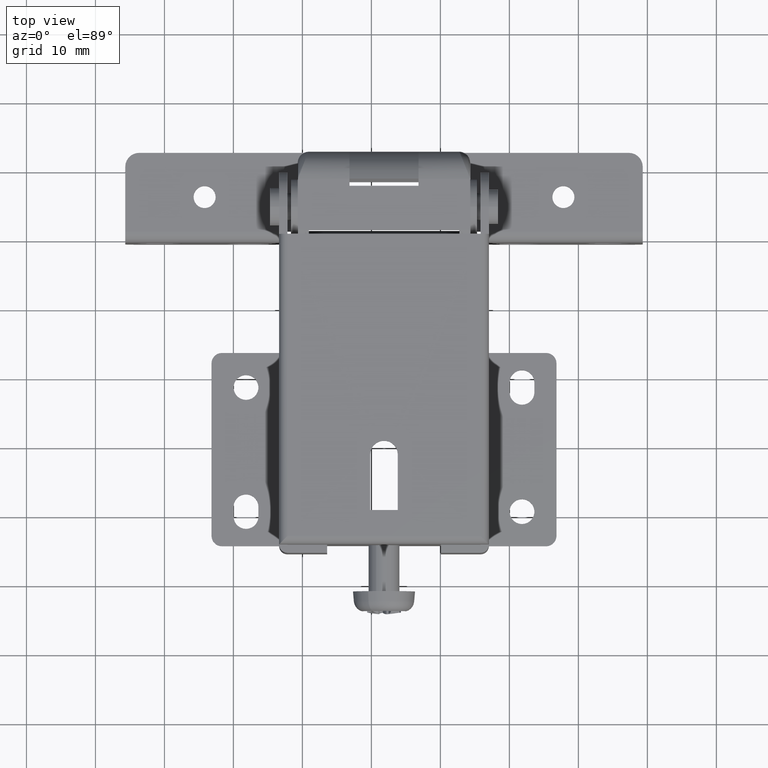
[diagram: clean part render]
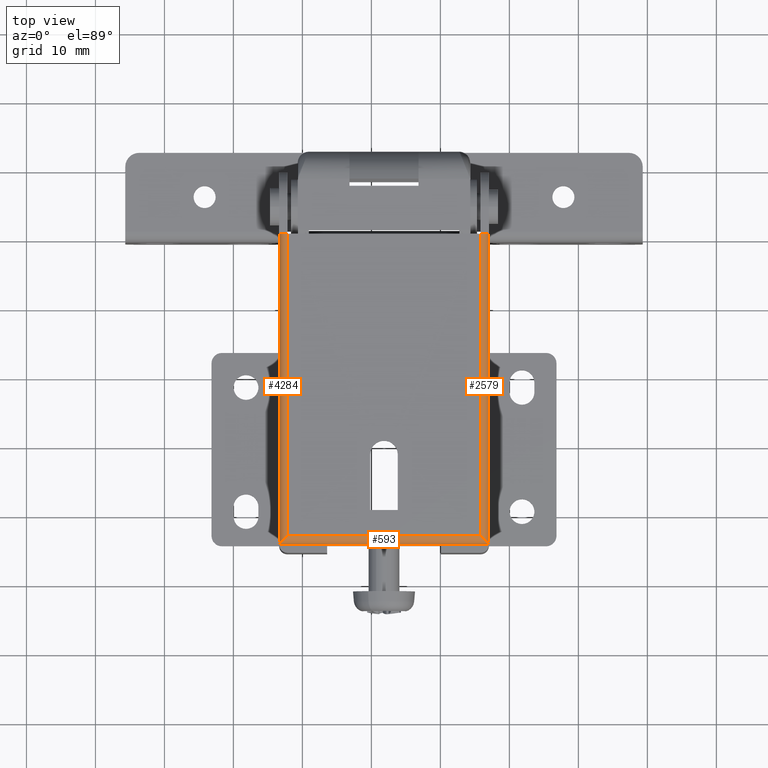
[diagram: same view with one multi-face feature highlighted, each face labeled with its STEP entity id]
A machine part, top view. The highlighted faces form ONE feature: a constant-radius fillet chain: 3 tangent blend faces with common blend radius 1.2 mm. The faces share edges in the B-rep.
Their STEP definitions:
[1] entity #4284 (Cylinder):
#337 = CARTESIAN_POINT ( 'NONE',  ( -13.99999699999975900, -5.000012000000070100, -4.000000000000000000 ) ) ;
#364 = EDGE_CURVE ( 'NONE', #5909, #9813, #3483, .T. ) ;
#581 = CARTESIAN_POINT ( 'NONE',  ( -15.19999699999974900, -5.000012000000070100, -49.00000000000000000 ) ) ;
#934 = ORIENTED_EDGE ( 'NONE', *, *, #9052, .F. ) ;
#1165 = DIRECTION ( 'NONE',  ( 1.000000000000000000, 0.0000000000000000000, 0.0000000000000000000 ) ) ;
#1284 = CARTESIAN_POINT ( 'NONE',  ( -13.99999699999975900, -6.200012000000070200, -47.80000000000000400 ) ) ;
#1330 = VECTOR ( 'NONE', #9780, 1000.000000000000000 ) ;
#2698 = CARTESIAN_POINT ( 'NONE',  ( -13.99999699999975900, -5.000012000000070100, -4.000000000000000000 ) ) ;
#2890 = CARTESIAN_POINT ( 'NONE',  ( -13.99999699999975900, -6.200012000000070200, -4.000000000000000000 ) ) ;
#3084 = CARTESIAN_POINT ( 'NONE',  ( -15.19999699999975800, -5.702955725152355300, -49.00000000000000000 ) ) ;
#3149 = ORIENTED_EDGE ( 'NONE', *, *, #364, .F. ) ;
#3184 = VECTOR ( 'NONE', #4765, 1000.000000000000000 ) ;
#3447 = LINE ( 'NONE', #6436, #3184 ) ;
#3483 =( BOUNDED_CURVE ( )  B_SPLINE_CURVE ( 3, ( #5633, #5595, #3084, #581 ),
 .UNSPECIFIED., .F., .T. ) 
 B_SPLINE_CURVE_WITH_KNOTS ( ( 4, 4 ),
 ( 1.570796326794896600, 3.141592653589793100 ),
 .UNSPECIFIED. ) 
 CURVE ( )  GEOMETRIC_REPRESENTATION_ITEM ( )  RATIONAL_B_SPLINE_CURVE ( ( 1.000000000000000000, 0.8047378541243649400, 0.8047378541243649400, 1.000000000000000000 ) ) 
 REPRESENTATION_ITEM ( '' )  );
#3498 = CYLINDRICAL_SURFACE ( 'NONE', #5146, 1.199999999999999700 ) ;
#3518 = DIRECTION ( 'NONE',  ( -1.000000000000000000, 0.0000000000000000000, 0.0000000000000000000 ) ) ;
#3920 = EDGE_CURVE ( 'NONE', #8909, #8520, #4176, .T. ) ;
#4176 = CIRCLE ( 'NONE', #7510, 1.199999999999999700 ) ;
#4284 = ADVANCED_FACE ( 'NONE', ( #10324 ), #3498, .T. ) ;
#4765 = DIRECTION ( 'NONE',  ( -0.0000000000000000000, -0.0000000000000000000, 1.000000000000000000 ) ) ;
#5146 = AXIS2_PLACEMENT_3D ( 'NONE', #2698, #6074, #3518 ) ;
#5595 = CARTESIAN_POINT ( 'NONE',  ( -14.70294072515204500, -6.200012000000071100, -48.50294372515229200 ) ) ;
#5633 = CARTESIAN_POINT ( 'NONE',  ( -13.99999699999975900, -6.200012000000070200, -47.80000000000000400 ) ) ;
#5702 = CARTESIAN_POINT ( 'NONE',  ( -13.99999699999975900, -6.200012000000070200, -47.80000000000000400 ) ) ;
#5909 = VERTEX_POINT ( 'NONE', #5702 ) ;
#6074 = DIRECTION ( 'NONE',  ( 0.0000000000000000000, 0.0000000000000000000, -1.000000000000000000 ) ) ;
#6229 = DIRECTION ( 'NONE',  ( 0.0000000000000000000, 0.0000000000000000000, 1.000000000000000000 ) ) ;
#6405 = ORIENTED_EDGE ( 'NONE', *, *, #9394, .F. ) ;
#6436 = CARTESIAN_POINT ( 'NONE',  ( -15.19999699999980100, -5.000012000000070100, -4.000000000000000000 ) ) ;
#7151 = ORIENTED_EDGE ( 'NONE', *, *, #3920, .F. ) ;
#7510 = AXIS2_PLACEMENT_3D ( 'NONE', #337, #6229, #1165 ) ;
#7623 = CARTESIAN_POINT ( 'NONE',  ( -15.19999699999980100, -5.000012000000070100, -4.000000000000000000 ) ) ;
#7940 = EDGE_LOOP ( 'NONE', ( #7151, #6405, #3149, #934 ) ) ;
#8119 = LINE ( 'NONE', #1284, #1330 ) ;
#8520 = VERTEX_POINT ( 'NONE', #2890 ) ;
#8909 = VERTEX_POINT ( 'NONE', #7623 ) ;
#9052 = EDGE_CURVE ( 'NONE', #8520, #5909, #8119, .T. ) ;
#9394 = EDGE_CURVE ( 'NONE', #9813, #8909, #3447, .T. ) ;
#9780 = DIRECTION ( 'NONE',  ( -0.0000000000000000000, -0.0000000000000000000, -1.000000000000000000 ) ) ;
#9813 = VERTEX_POINT ( 'NONE', #10367 ) ;
#10324 = FACE_OUTER_BOUND ( 'NONE', #7940, .T. ) ;
#10367 = CARTESIAN_POINT ( 'NONE',  ( -15.19999699999974900, -5.000012000000070100, -49.00000000000000000 ) ) ;
[2] entity #593 (Cylinder):
#230 = CARTESIAN_POINT ( 'NONE',  ( 13.99999700000019900, -6.200012000000070200, -47.80000000000000400 ) ) ;
#241 = ORIENTED_EDGE ( 'NONE', *, *, #5521, .T. ) ;
#364 = EDGE_CURVE ( 'NONE', #5909, #9813, #3483, .T. ) ;
#365 = ORIENTED_EDGE ( 'NONE', *, *, #8698, .F. ) ;
#581 = CARTESIAN_POINT ( 'NONE',  ( -15.19999699999974900, -5.000012000000070100, -49.00000000000000000 ) ) ;
#593 = ADVANCED_FACE ( 'NONE', ( #2937 ), #7197, .T. ) ;
#643 = ORIENTED_EDGE ( 'NONE', *, *, #5946, .T. ) ;
#651 = CARTESIAN_POINT ( 'NONE',  ( 0.0000000000000000000, -5.000012000000070100, -49.00000000000000000 ) ) ;
#1003 = DIRECTION ( 'NONE',  ( 1.000000000000000000, 0.0000000000000000000, 0.0000000000000000000 ) ) ;
#1525 = DIRECTION ( 'NONE',  ( 1.000000000000000000, -0.0000000000000000000, -0.0000000000000000000 ) ) ;
#1722 = VERTEX_POINT ( 'NONE', #9180 ) ;
#1816 = VERTEX_POINT ( 'NONE', #2580 ) ;
#1926 = ORIENTED_EDGE ( 'NONE', *, *, #6883, .F. ) ;
#1998 = LINE ( 'NONE', #7472, #3984 ) ;
#2084 = ORIENTED_EDGE ( 'NONE', *, *, #5229, .T. ) ;
#2290 = VECTOR ( 'NONE', #4810, 1000.000000000000000 ) ;
#2369 = VERTEX_POINT ( 'NONE', #10919 ) ;
#2370 = DIRECTION ( 'NONE',  ( -1.000000000000000000, 0.0000000000000000000, 0.0000000000000000000 ) ) ;
#2580 = CARTESIAN_POINT ( 'NONE',  ( 14.00000000000019900, -5.000012000000110000, -49.00000000000000000 ) ) ;
#2588 = LINE ( 'NONE', #6625, #6846 ) ;
#2937 = FACE_OUTER_BOUND ( 'NONE', #10485, .T. ) ;
#3084 = CARTESIAN_POINT ( 'NONE',  ( -15.19999699999975800, -5.702955725152355300, -49.00000000000000000 ) ) ;
#3219 = DIRECTION ( 'NONE',  ( 1.000000000000000000, 0.0000000000000000000, 0.0000000000000000000 ) ) ;
#3483 =( BOUNDED_CURVE ( )  B_SPLINE_CURVE ( 3, ( #5633, #5595, #3084, #581 ),
 .UNSPECIFIED., .F., .T. ) 
 B_SPLINE_CURVE_WITH_KNOTS ( ( 4, 4 ),
 ( 1.570796326794896600, 3.141592653589793100 ),
 .UNSPECIFIED. ) 
 CURVE ( )  GEOMETRIC_REPRESENTATION_ITEM ( )  RATIONAL_B_SPLINE_CURVE ( ( 1.000000000000000000, 0.8047378541243649400, 0.8047378541243649400, 1.000000000000000000 ) ) 
 REPRESENTATION_ITEM ( '' )  );
#3562 = CARTESIAN_POINT ( 'NONE',  ( 15.19999700000019900, -5.000012000000070100, -49.00000000000000000 ) ) ;
#3603 = DIRECTION ( 'NONE',  ( 1.000000000000000000, 0.0000000000000000000, 0.0000000000000000000 ) ) ;
#3884 = LINE ( 'NONE', #6078, #10727 ) ;
#3984 = VECTOR ( 'NONE', #2370, 1000.000000000000000 ) ;
#4109 = CARTESIAN_POINT ( 'NONE',  ( -984.8000030000000600, -5.000012000000070100, -47.80000000000000400 ) ) ;
#4437 = LINE ( 'NONE', #4456, #11022 ) ;
#4456 = CARTESIAN_POINT ( 'NONE',  ( -984.8000030000000600, -5.000012000000070100, -49.00000000000000000 ) ) ;
#4810 = DIRECTION ( 'NONE',  ( 1.000000000000000000, 0.0000000000000000000, 0.0000000000000000000 ) ) ;
#4958 = DIRECTION ( 'NONE',  ( 0.0000000000000000000, 0.0000000000000000000, -1.000000000000000000 ) ) ;
#5229 = EDGE_CURVE ( 'NONE', #2369, #7363, #2588, .T. ) ;
#5266 = CARTESIAN_POINT ( 'NONE',  ( 14.70294072515248600, -6.200012000000071100, -48.50294372515229200 ) ) ;
#5283 = CARTESIAN_POINT ( 'NONE',  ( 13.99000000000020100, -5.000012000000110000, -49.00000000000000000 ) ) ;
#5285 = CARTESIAN_POINT ( 'NONE',  ( 15.19999700000019900, -5.000012000000070100, -49.00000000000000000 ) ) ;
#5521 = EDGE_CURVE ( 'NONE', #10658, #1722, #7318, .T. ) ;
#5571 = EDGE_CURVE ( 'NONE', #9813, #9428, #4437, .T. ) ;
#5595 = CARTESIAN_POINT ( 'NONE',  ( -14.70294072515204500, -6.200012000000071100, -48.50294372515229200 ) ) ;
#5633 = CARTESIAN_POINT ( 'NONE',  ( -13.99999699999975900, -6.200012000000070200, -47.80000000000000400 ) ) ;
#5702 = CARTESIAN_POINT ( 'NONE',  ( -13.99999699999975900, -6.200012000000070200, -47.80000000000000400 ) ) ;
#5751 = VECTOR ( 'NONE', #1525, 1000.000000000000000 ) ;
#5909 = VERTEX_POINT ( 'NONE', #5702 ) ;
#5946 = EDGE_CURVE ( 'NONE', #7363, #1816, #8037, .T. ) ;
#6078 = CARTESIAN_POINT ( 'NONE',  ( -984.8000030000000600, -5.000012000000070100, -49.00000000000000000 ) ) ;
#6296 = ORIENTED_EDGE ( 'NONE', *, *, #5571, .T. ) ;
#6625 = CARTESIAN_POINT ( 'NONE',  ( -984.8000030000000600, -5.000012000000070100, -49.00000000000000000 ) ) ;
#6711 = EDGE_CURVE ( 'NONE', #1816, #10658, #3884, .T. ) ;
#6811 = LINE ( 'NONE', #10826, #2290 ) ;
#6846 = VECTOR ( 'NONE', #10993, 1000.000000000000000 ) ;
#6883 = EDGE_CURVE ( 'NONE', #5909, #1722, #6811, .T. ) ;
#7197 = CYLINDRICAL_SURFACE ( 'NONE', #7564, 1.199999999999999700 ) ;
#7318 =( BOUNDED_CURVE ( )  B_SPLINE_CURVE ( 3, ( #3562, #8694, #5266, #230 ),
 .UNSPECIFIED., .F., .F. ) 
 B_SPLINE_CURVE_WITH_KNOTS ( ( 4, 4 ),
 ( 0.0000000000000000000, 1.570796326794896600 ),
 .UNSPECIFIED. ) 
 CURVE ( )  GEOMETRIC_REPRESENTATION_ITEM ( )  RATIONAL_B_SPLINE_CURVE ( ( 1.000000000000000000, 0.8047378541243649400, 0.8047378541243649400, 1.000000000000000000 ) ) 
 REPRESENTATION_ITEM ( '' )  );
#7363 = VERTEX_POINT ( 'NONE', #5283 ) ;
#7472 = CARTESIAN_POINT ( 'NONE',  ( -13.98999999999979900, -5.000012000000110000, -49.00000000000000000 ) ) ;
#7564 = AXIS2_PLACEMENT_3D ( 'NONE', #4109, #3219, #4958 ) ;
#8037 = LINE ( 'NONE', #651, #5751 ) ;
#8243 = CARTESIAN_POINT ( 'NONE',  ( -13.99999999999979900, -5.000012000000110000, -49.00000000000000000 ) ) ;
#8694 = CARTESIAN_POINT ( 'NONE',  ( 15.19999700000020000, -5.702955725152355300, -49.00000000000000000 ) ) ;
#8698 = EDGE_CURVE ( 'NONE', #2369, #9428, #1998, .T. ) ;
#9180 = CARTESIAN_POINT ( 'NONE',  ( 13.99999700000019900, -6.200012000000070200, -47.80000000000000400 ) ) ;
#9275 = ORIENTED_EDGE ( 'NONE', *, *, #364, .T. ) ;
#9428 = VERTEX_POINT ( 'NONE', #8243 ) ;
#9813 = VERTEX_POINT ( 'NONE', #10367 ) ;
#10367 = CARTESIAN_POINT ( 'NONE',  ( -15.19999699999974900, -5.000012000000070100, -49.00000000000000000 ) ) ;
#10485 = EDGE_LOOP ( 'NONE', ( #1926, #9275, #6296, #365, #2084, #643, #10756, #241 ) ) ;
#10658 = VERTEX_POINT ( 'NONE', #5285 ) ;
#10727 = VECTOR ( 'NONE', #1003, 1000.000000000000000 ) ;
#10756 = ORIENTED_EDGE ( 'NONE', *, *, #6711, .T. ) ;
#10826 = CARTESIAN_POINT ( 'NONE',  ( -984.8000030000000600, -6.200012000000070200, -47.80000000000000400 ) ) ;
#10919 = CARTESIAN_POINT ( 'NONE',  ( -13.98999999999979900, -5.000012000000110000, -49.00000000000000000 ) ) ;
#10993 = DIRECTION ( 'NONE',  ( 1.000000000000000000, 0.0000000000000000000, 0.0000000000000000000 ) ) ;
#11022 = VECTOR ( 'NONE', #3603, 1000.000000000000000 ) ;
[3] entity #2579 (Cylinder):
#230 = CARTESIAN_POINT ( 'NONE',  ( 13.99999700000019900, -6.200012000000070200, -47.80000000000000400 ) ) ;
#624 = ORIENTED_EDGE ( 'NONE', *, *, #7236, .F. ) ;
#744 = AXIS2_PLACEMENT_3D ( 'NONE', #945, #2606, #6000 ) ;
#945 = CARTESIAN_POINT ( 'NONE',  ( 13.99999700000019900, -5.000012000000070100, 0.0000000000000000000 ) ) ;
#1106 = ORIENTED_EDGE ( 'NONE', *, *, #10151, .F. ) ;
#1565 = FACE_OUTER_BOUND ( 'NONE', #7768, .T. ) ;
#1722 = VERTEX_POINT ( 'NONE', #9180 ) ;
#2157 = LINE ( 'NONE', #6020, #4403 ) ;
#2579 = ADVANCED_FACE ( 'NONE', ( #1565 ), #5518, .T. ) ;
#2606 = DIRECTION ( 'NONE',  ( 0.0000000000000000000, 0.0000000000000000000, 1.000000000000000000 ) ) ;
#3562 = CARTESIAN_POINT ( 'NONE',  ( 15.19999700000019900, -5.000012000000070100, -49.00000000000000000 ) ) ;
#3600 = EDGE_CURVE ( 'NONE', #1722, #10781, #8611, .T. ) ;
#3932 = DIRECTION ( 'NONE',  ( 0.0000000000000000000, 0.0000000000000000000, 1.000000000000000000 ) ) ;
#4245 = CARTESIAN_POINT ( 'NONE',  ( 13.99999700000019900, -6.200012000000070200, -4.000000000000000000 ) ) ;
#4403 = VECTOR ( 'NONE', #6905, 1000.000000000000000 ) ;
#5095 = DIRECTION ( 'NONE',  ( 0.0000000000000000000, 0.0000000000000000000, 1.000000000000000000 ) ) ;
#5266 = CARTESIAN_POINT ( 'NONE',  ( 14.70294072515248600, -6.200012000000071100, -48.50294372515229200 ) ) ;
#5285 = CARTESIAN_POINT ( 'NONE',  ( 15.19999700000019900, -5.000012000000070100, -49.00000000000000000 ) ) ;
#5518 = CYLINDRICAL_SURFACE ( 'NONE', #744, 1.199999999999999700 ) ;
#5521 = EDGE_CURVE ( 'NONE', #10658, #1722, #7318, .T. ) ;
#6000 = DIRECTION ( 'NONE',  ( 1.000000000000000000, 0.0000000000000000000, 0.0000000000000000000 ) ) ;
#6020 = CARTESIAN_POINT ( 'NONE',  ( 15.19999700000019900, -5.000012000000070100, 0.0000000000000000000 ) ) ;
#6905 = DIRECTION ( 'NONE',  ( 0.0000000000000000000, 0.0000000000000000000, -1.000000000000000000 ) ) ;
#6980 = ORIENTED_EDGE ( 'NONE', *, *, #3600, .F. ) ;
#7236 = EDGE_CURVE ( 'NONE', #7310, #10658, #2157, .T. ) ;
#7310 = VERTEX_POINT ( 'NONE', #9523 ) ;
#7318 =( BOUNDED_CURVE ( )  B_SPLINE_CURVE ( 3, ( #3562, #8694, #5266, #230 ),
 .UNSPECIFIED., .F., .F. ) 
 B_SPLINE_CURVE_WITH_KNOTS ( ( 4, 4 ),
 ( 0.0000000000000000000, 1.570796326794896600 ),
 .UNSPECIFIED. ) 
 CURVE ( )  GEOMETRIC_REPRESENTATION_ITEM ( )  RATIONAL_B_SPLINE_CURVE ( ( 1.000000000000000000, 0.8047378541243649400, 0.8047378541243649400, 1.000000000000000000 ) ) 
 REPRESENTATION_ITEM ( '' )  );
#7768 = EDGE_LOOP ( 'NONE', ( #1106, #6980, #11007, #624 ) ) ;
#7787 = CARTESIAN_POINT ( 'NONE',  ( 13.99999700000019900, -6.200012000000070200, -4.000000000000000000 ) ) ;
#8336 = VECTOR ( 'NONE', #5095, 1000.000000000000000 ) ;
#8611 = LINE ( 'NONE', #4245, #8336 ) ;
#8694 = CARTESIAN_POINT ( 'NONE',  ( 15.19999700000020000, -5.702955725152355300, -49.00000000000000000 ) ) ;
#9068 = CARTESIAN_POINT ( 'NONE',  ( 13.99999700000019900, -5.000012000000070100, -4.000000000000000000 ) ) ;
#9180 = CARTESIAN_POINT ( 'NONE',  ( 13.99999700000019900, -6.200012000000070200, -47.80000000000000400 ) ) ;
#9523 = CARTESIAN_POINT ( 'NONE',  ( 15.19999700000019900, -5.000012000000070100, -4.000000000000000000 ) ) ;
#9909 = DIRECTION ( 'NONE',  ( 1.000000000000000000, 0.0000000000000000000, 0.0000000000000000000 ) ) ;
#10151 = EDGE_CURVE ( 'NONE', #10781, #7310, #10378, .T. ) ;
#10378 = CIRCLE ( 'NONE', #10431, 1.199999999999999700 ) ;
#10431 = AXIS2_PLACEMENT_3D ( 'NONE', #9068, #3932, #9909 ) ;
#10658 = VERTEX_POINT ( 'NONE', #5285 ) ;
#10781 = VERTEX_POINT ( 'NONE', #7787 ) ;
#11007 = ORIENTED_EDGE ( 'NONE', *, *, #5521, .F. ) ;